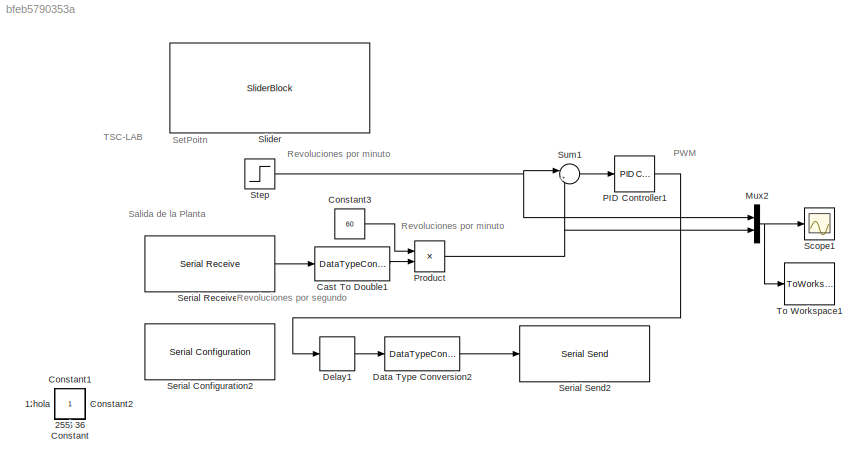
MODEL slx_bfeb5790353a
KIND model
CONFIG AbsTol = auto
CONFIG EnableMultiTasking = off
CONFIG FixedStep = auto
CONFIG MaxStep = auto
CONFIG MinStep = auto
CONFIG RelTol = 1e-3
CONFIG SampleTimeConstraint = Unconstrained
CONFIG SolverName = VariableStepAuto
CONFIG StartTime = 0.0
CONFIG StopTime = 800
BLOCK [Constant] $
  IOType = siggen
  Value = 36
BLOCK [Constant] ,
  IOType = siggen
  Value = 44
BLOCK [Constant] 0
  IOType = siggen
BLOCK [Constant] 0A
  IOType = siggen
  Value = 10
BLOCK [Constant] 0D
  IOType = siggen
  Value = 13
BLOCK [Constant] 10
  IOType = siggen
BLOCK [Constant] 12345
  IOType = siggen
BLOCK [Constant] 13
  IOType = siggen
  Value = 13
BLOCK [Constant] 255
  IOType = siggen
BLOCK [Constant] 311
  IOType = siggen
BLOCK [Constant] 36
  IOType = siggen
  Value = 36
BLOCK [DataTypeConversion] Cast To Double1
  OutDataTypeStr = double
  RndMeth = Floor
  SaturateOnIntegerOverflow = off
BLOCK [Constant] Constant
  IOType = siggen
BLOCK [Constant] Constant1
  IOType = siggen
BLOCK [Constant] Constant2
  IOType = siggen
BLOCK [Constant] Constant3
  Value = 60
BLOCK [DataTypeConversion] Data Type Conversion2
  OutDataTypeStr = uint8
  RndMeth = Floor
  SaturateOnIntegerOverflow = off
BLOCK [Delay] Delay1
  DelayLength = 1
  InitialCondition = 0
  InputPortMap = u0
  Ports = [1, 1]
BLOCK [Mux] Mux2
  DisplayOption = bar
  Inputs = 2
  Ports = [2, 1]
BLOCK [Reference] PID Controller1  REF=pid_lib/PID Controller
  Ports = [1, 1]
  SourceBlock = pid_lib/PID Controller
  SourceProductBaseCode = SL
  SourceType = PID 1dof
BLOCK [Product] Product
  Ports = [2, 1]
BLOCK [Scope] Scope1
  Floating = off
  NumInputPorts = 1
  Ports = [1]
  ScopeSpecificationString = Simulink.scopes.TimeScopeBlockCfg('CurrentConfiguration', extmgr.ConfigurationSet(extmgr.Configuration('Core','General UI',true),extmgr.Configuration('Core','Source UI',true),extmgr.Configuration('Sources','WiredSimulink',true,'DataLoggingVariableName','ScopeData1'),extmgr.Configuration('Visuals','Time Domain',true,'SerializedDisplays',{struct('MinYLimReal','-191.96035','MaxYLimReal','6548.81859',...<+1508ch>
BLOCK [Reference] Serial Configuration2  REF=instrumentseriallib/Serial Configuration
  Ports = []
  Priority = -200000
  SourceBlock = instrumentseriallib/Serial Configuration
  SourceProductBaseCode = IC
  SourceType = matlabshared.seriallib.internal.system.SerialConfiguration
BLOCK [Reference] Serial Receive1  REF=instrumentseriallib/Serial Receive
  Ports = [0, 1]
  SourceBlock = instrumentseriallib/Serial Receive
  SourceProductBaseCode = IC
  SourceType = matlabshared.seriallib.internal.system.SerialReceive
BLOCK [Reference] Serial Send2  REF=instrumentseriallib/Serial Send
  Ports = [1]
  SourceBlock = instrumentseriallib/Serial Send
  SourceProductBaseCode = IC
  SourceType = matlabshared.seriallib.internal.system.SerialSend
BLOCK [SliderBlock] Slider
  ScaleMax = 5000
BLOCK [Step] Step
  After = 3000
  SampleTime = 0
  Time = 20
BLOCK [Sum] Sum1
  Inputs = |+-
  Ports = [2, 1]
BLOCK [ToWorkspace] To Workspace1
  MaxDataPoints = inf
  Ports = [1]
  SampleTime = -1
  Save2DSignal = 2-D array (concatenate along first dimension)
  VariableName = yout1
BLOCK [Constant] hola
  IOType = siggen
ANNOTATION (root): PWM
ANNOTATION (root): Revoluciones por minuto
ANNOTATION (root): Revoluciones por segundo
ANNOTATION (root): Salida de la Planta
ANNOTATION (root): SetPoitn
ANNOTATION (root): TSC-LAB
LINE Cast To Double1:1 -> Product:2
LINE Constant3:1 -> Product:1
LINE Data Type Conversion2:1 -> Serial Send2:1
LINE Delay1:1 -> Data Type Conversion2:1
NET Mux2:1 -> Scope1:1, To Workspace1:1
LINE PID Controller1:1 -> Delay1:1
NET Product:1 -> Mux2:2, Sum1:2
LINE Serial Receive1:1 -> Cast To Double1:1
NET Step:1 -> Mux2:1, Sum1:1
LINE Sum1:1 -> PID Controller1:1
note: NET lines group one-source signal fan-out (src -> all destinations, sorted); 1:1 wires keep LINE
